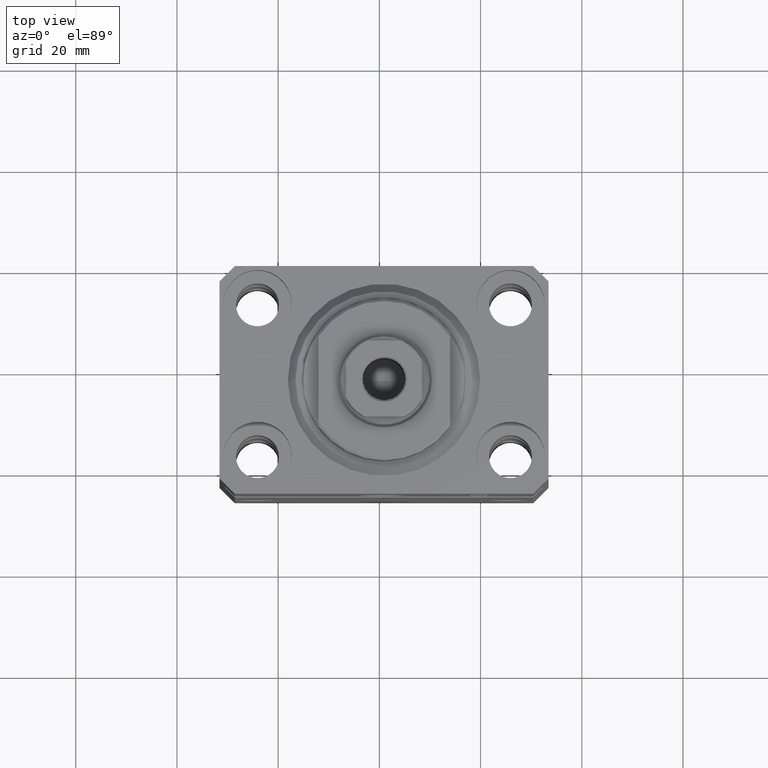
[diagram: clean part render]
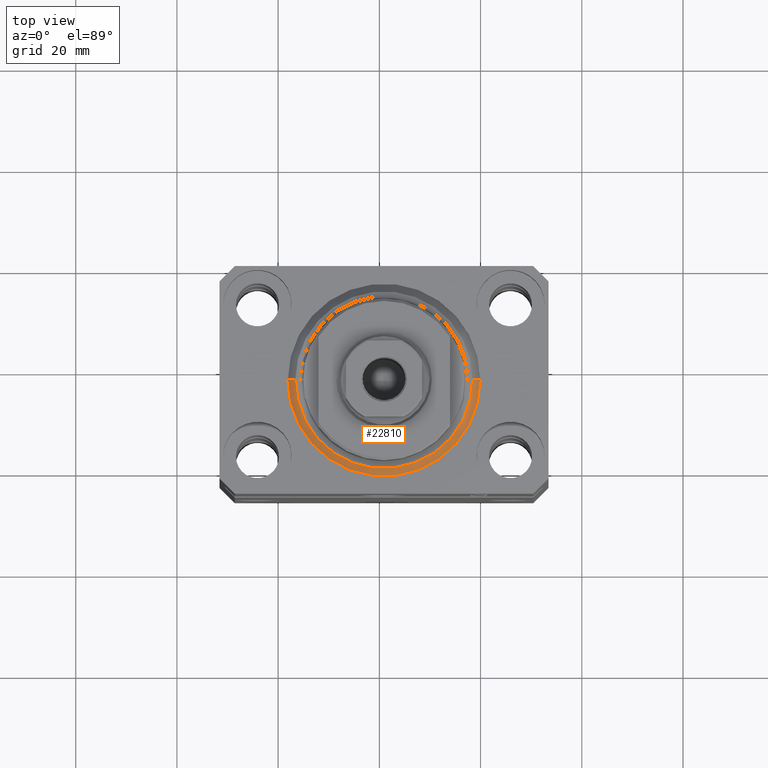
[diagram: same view with one face highlighted and labeled with its STEP entity id]
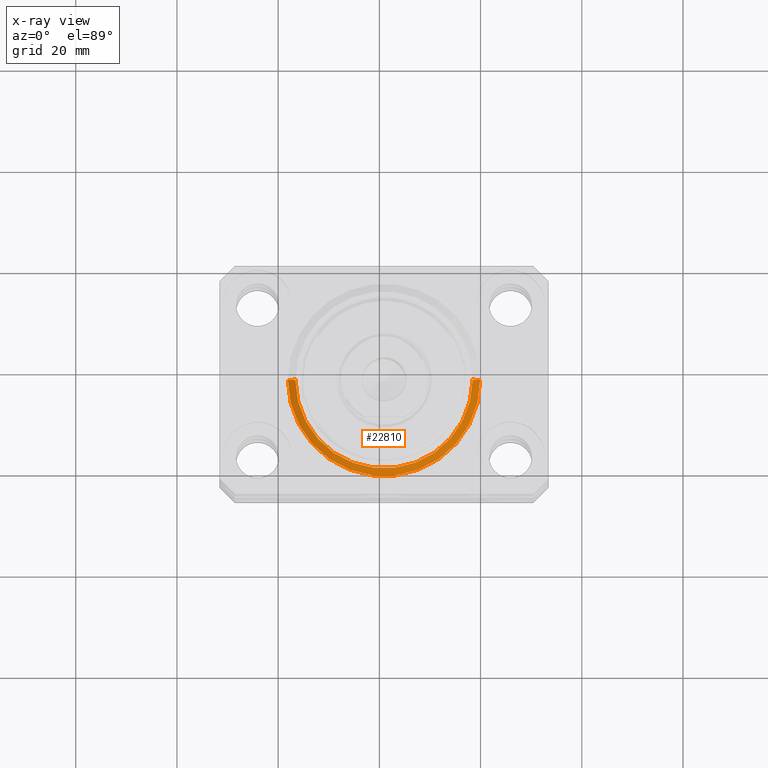
[diagram: x-ray of the same camera — body ghosted, the highlighted face saturated]
A machine part, top view. The second image highlights one B-rep face of the part: STEP entity #22810.
The next image is the same camera in x-ray: the body ghosted, the highlighted face saturated — about 0% of this face is hidden behind the body in this view.
In plain terms, the highlighted conical surface has half-angle 45 deg.
Its self-contained STEP definition (entity closure, byte-faithful):
#87 = VERTEX_POINT ( 'NONE', #10942 ) ;
#1656 = VERTEX_POINT ( 'NONE', #36301 ) ;
#2863 = CARTESIAN_POINT ( 'NONE',  ( 0.000000000000000000, 0.000000000000000000, 0.000000000000000000 ) ) ;
#2919 = CARTESIAN_POINT ( 'NONE',  ( 19.00000000000000000, 0.000000000000000000, 1.500000000000004885 ) ) ;
#3511 = EDGE_CURVE ( 'NONE', #87, #19433, #20625, .T. ) ;
#4310 = CARTESIAN_POINT ( 'NONE',  ( 0.000000000000000000, 0.000000000000000000, 1.500000000000004885 ) ) ;
#8135 = EDGE_CURVE ( 'NONE', #87, #1656, #44742, .T. ) ;
#8387 = FACE_OUTER_BOUND ( 'NONE', #27586, .T. ) ;
#10942 = CARTESIAN_POINT ( 'NONE',  ( 17.49999999999999289, 0.000000000000000000, 0.000000000000000000 ) ) ;
#11664 = CIRCLE ( 'NONE', #24715, 19.00000000000000000 ) ;
#13431 = ORIENTED_EDGE ( 'NONE', *, *, #29293, .F. ) ;
#16362 = ORIENTED_EDGE ( 'NONE', *, *, #3511, .T. ) ;
#17384 = CARTESIAN_POINT ( 'NONE',  ( 19.00000000000000000, 2.326828918379970970E-15, 1.500000000000004885 ) ) ;
#18321 = CARTESIAN_POINT ( 'NONE',  ( -19.00000000000000000, 0.000000000000000000, 1.500000000000004885 ) ) ;
#19433 = VERTEX_POINT ( 'NONE', #17384 ) ;
#19637 = CONICAL_SURFACE ( 'NONE', #43616, 19.00000000000000000, 0.7853981633974492782 ) ;
#20625 = LINE ( 'NONE', #2919, #38900 ) ;
#20949 = DIRECTION ( 'NONE',  ( -0.000000000000000000, -0.000000000000000000, 1.000000000000000000 ) ) ;
#22020 = DIRECTION ( 'NONE',  ( -0.000000000000000000, -0.000000000000000000, 1.000000000000000000 ) ) ;
#22810 = ADVANCED_FACE ( 'NONE', ( #8387 ), #19637, .T. ) ;
#23309 = EDGE_CURVE ( 'NONE', #43132, #19433, #11664, .T. ) ;
#23643 = AXIS2_PLACEMENT_3D ( 'NONE', #2863, #44485, #27403 ) ;
#24492 = DIRECTION ( 'NONE',  ( 0.7071067811865483499, 0.000000000000000000, 0.7071067811865467956 ) ) ;
#24595 = CARTESIAN_POINT ( 'NONE',  ( 0.000000000000000000, 0.000000000000000000, 1.500000000000004885 ) ) ;
#24715 = AXIS2_PLACEMENT_3D ( 'NONE', #24595, #20949, #28460 ) ;
#25739 = CARTESIAN_POINT ( 'NONE',  ( -19.00000000000000000, 2.326828918379970970E-15, 1.500000000000004885 ) ) ;
#27403 = DIRECTION ( 'NONE',  ( 1.000000000000000000, 0.000000000000000000, 0.000000000000000000 ) ) ;
#27586 = EDGE_LOOP ( 'NONE', ( #13431, #39245, #16362, #35593 ) ) ;
#28460 = DIRECTION ( 'NONE',  ( 1.000000000000000000, 0.000000000000000000, 0.000000000000000000 ) ) ;
#29293 = EDGE_CURVE ( 'NONE', #1656, #43132, #43042, .T. ) ;
#35593 = ORIENTED_EDGE ( 'NONE', *, *, #23309, .F. ) ;
#36301 = CARTESIAN_POINT ( 'NONE',  ( -17.49999999999999289, 2.234980408443919215E-15, 0.000000000000000000 ) ) ;
#37989 = VECTOR ( 'NONE', #43932, 1000.000000000000000 ) ;
#38900 = VECTOR ( 'NONE', #24492, 1000.000000000000000 ) ;
#39245 = ORIENTED_EDGE ( 'NONE', *, *, #8135, .F. ) ;
#39332 = DIRECTION ( 'NONE',  ( 1.000000000000000000, 0.000000000000000000, 0.000000000000000000 ) ) ;
#43042 = LINE ( 'NONE', #25739, #37989 ) ;
#43132 = VERTEX_POINT ( 'NONE', #18321 ) ;
#43616 = AXIS2_PLACEMENT_3D ( 'NONE', #4310, #22020, #39332 ) ;
#43932 = DIRECTION ( 'NONE',  ( -0.7071067811865483499, 8.659560562354943952E-17, 0.7071067811865467956 ) ) ;
#44485 = DIRECTION ( 'NONE',  ( -0.000000000000000000, -0.000000000000000000, -1.000000000000000000 ) ) ;
#44742 = CIRCLE ( 'NONE', #23643, 17.49999999999999289 ) ;